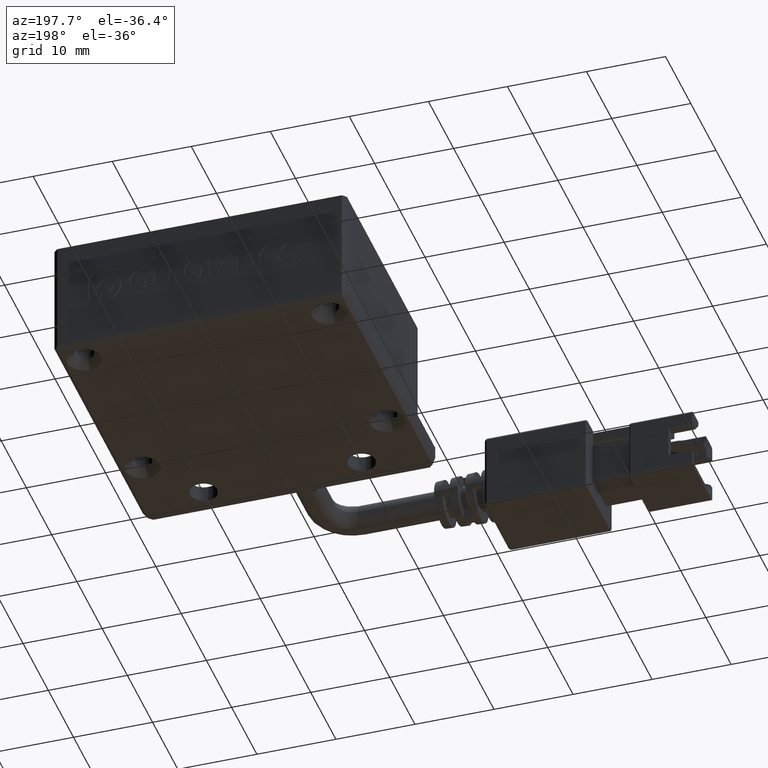
[diagram: clean part render]
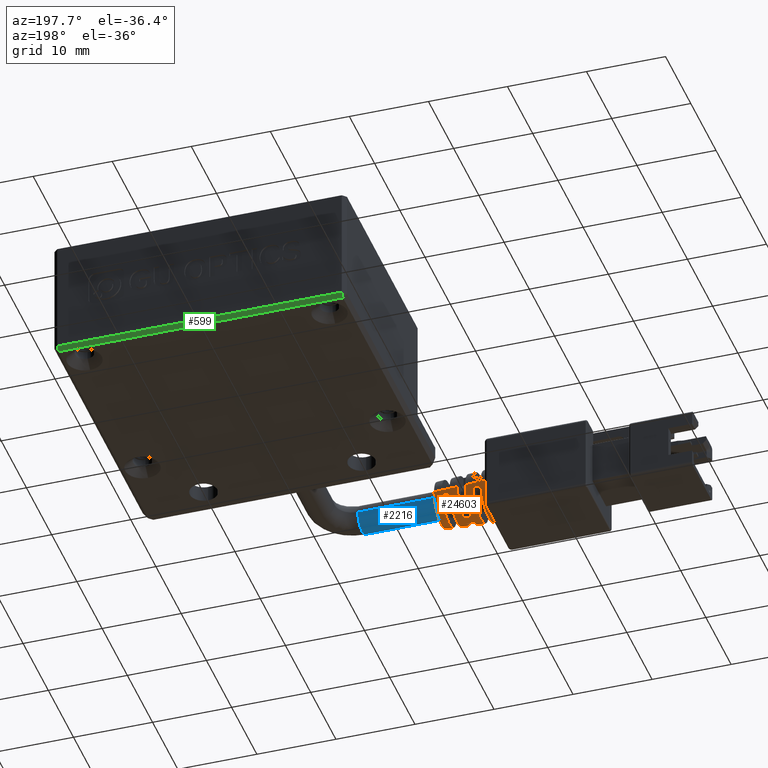
[diagram: same view with three faces highlighted in distinct colors, each labeled with its STEP entity id]
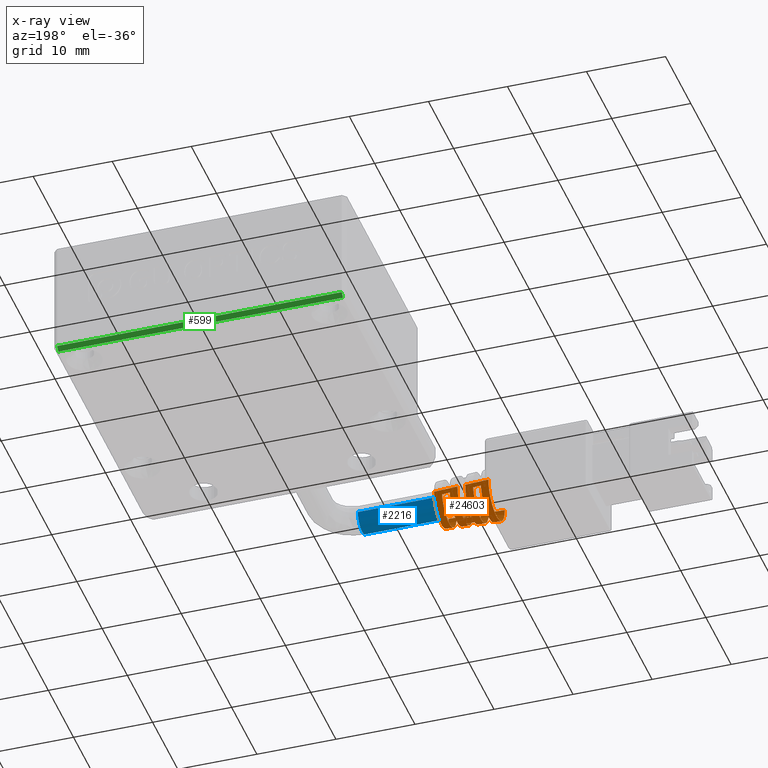
[diagram: x-ray of the same camera — body ghosted, the three highlighted faces saturated]
A machine part, auxiliary view with three faces highlighted in distinct colors.
The next image is the same camera in x-ray (body ghosted, the three faces saturated) — at least one of them is partly hidden behind the body in this view.
Their STEP definitions:

[orange] entity #24603 — the highlighted conical surface has half-angle 3 deg.
#71 = DIRECTION ( 'NONE',  ( 1.000000000000000000, 6.162975822039154700E-033, 5.345529420184391300E-049 ) ) ;
#76 = CARTESIAN_POINT ( 'NONE',  ( -20.52940053432780200, -38.05364642993505700, 3.999999999983630400 ) ) ;
#137 = CARTESIAN_POINT ( 'NONE',  ( -15.19606684410781500, -35.14437942505667700, 3.399999999983630300 ) ) ;
#155 = CARTESIAN_POINT ( 'NONE',  ( -20.52940053432780200, -34.80364642994796000, 3.999999999983631300 ) ) ;
#204 = CARTESIAN_POINT ( 'NONE',  ( -14.52940053456927500, -35.18006446315163800, 3.399999999983630300 ) ) ;
#209 = ORIENTED_EDGE ( 'NONE', *, *, #3066, .T. ) ;
#491 = B_SPLINE_CURVE_WITH_KNOTS ( 'NONE', 3,
 ( #8314, #16425, #137, #14421 ),
 .UNSPECIFIED., .F., .F.,
 ( 4, 4 ),
 ( 2.814395180234999500E-015, 0.001001431039903073800 ),
 .UNSPECIFIED. ) ;
#522 = VERTEX_POINT ( 'NONE', #204 ) ;
#614 = VERTEX_POINT ( 'NONE', #3226 ) ;
#633 = CARTESIAN_POINT ( 'NONE',  ( -18.52940053455040100, -34.96622271903431300, 3.399999999983630300 ) ) ;
#648 = CARTESIAN_POINT ( 'NONE',  ( -15.52940053455972500, -38.05364642993505700, 3.999999999983630400 ) ) ;
#801 = VERTEX_POINT ( 'NONE', #10318 ) ;
#1091 = EDGE_CURVE ( 'NONE', #15971, #14452, #26383, .T. ) ;
#1222 = CARTESIAN_POINT ( 'NONE',  ( -15.52940053455882300, -35.12654691735688300, 3.399999999983630300 ) ) ;
#1267 = CIRCLE ( 'NONE', #4834, 2.935553324303140400 ) ;
#1456 = ORIENTED_EDGE ( 'NONE', *, *, #10693, .T. ) ;
#1509 = VECTOR ( 'NONE', #22633, 1000.000000000000200 ) ;
#1721 = ORIENTED_EDGE ( 'NONE', *, *, #14025, .F. ) ;
#1763 = AXIS2_PLACEMENT_3D ( 'NONE', #23214, #10905, #25270 ) ;
#2151 = CARTESIAN_POINT ( 'NONE',  ( -18.52940053454562600, -38.05364642993505700, 3.999999999983630400 ) ) ;
#2215 = DIRECTION ( 'NONE',  ( -0.9986295347545816000, 0.05233595624279531500, 1.094872672590912000E-017 ) ) ;
#2221 = DIRECTION ( 'NONE',  ( 0.0000000000000000000, -1.000000000000000000, 0.0000000000000000000 ) ) ;
#2285 = CARTESIAN_POINT ( 'NONE',  ( -17.52940053456927300, -38.05364642993505700, 3.999999999983630400 ) ) ;
#2419 = B_SPLINE_CURVE_WITH_KNOTS ( 'NONE', 3,
 ( #633, #12911, #14938, #2696 ),
 .UNSPECIFIED., .F., .F.,
 ( 4, 4 ),
 ( 9.380091124788226300E-016, 0.001001423258045919700 ),
 .UNSPECIFIED. ) ;
#2696 = CARTESIAN_POINT ( 'NONE',  ( -19.52940053457408000, -34.91285098769584700, 3.399999999983630300 ) ) ;
#2710 = DIRECTION ( 'NONE',  ( 0.0000000000000000000, -1.000000000000000000, 0.0000000000000000000 ) ) ;
#2772 = VERTEX_POINT ( 'NONE', #7502 ) ;
#3066 = EDGE_CURVE ( 'NONE', #25615, #16110, #2419, .T. ) ;
#3226 = CARTESIAN_POINT ( 'NONE',  ( -14.52940053457772900, -40.92722839671893100, 3.399999999983629500 ) ) ;
#3280 = DIRECTION ( 'NONE',  ( -1.000000000000000000, -6.162975822039154700E-033, -5.345529420184391300E-049 ) ) ;
#3288 = EDGE_CURVE ( 'NONE', #6914, #25945, #23094, .T. ) ;
#3347 = ORIENTED_EDGE ( 'NONE', *, *, #1091, .T. ) ;
#3439 = VERTEX_POINT ( 'NONE', #5310 ) ;
#3511 = CIRCLE ( 'NONE', #25494, 3.145184441432725900 ) ;
#3923 = DIRECTION ( 'NONE',  ( 1.000000000000000000, 6.162975822039154700E-033, 5.345529420184391300E-049 ) ) ;
#4140 = LINE ( 'NONE', #155, #9613 ) ;
#4191 = CARTESIAN_POINT ( 'NONE',  ( -17.52940053456927300, -38.05364642993505700, 3.999999999983630400 ) ) ;
#4217 = DIRECTION ( 'NONE',  ( 0.0000000000000000000, -1.000000000000000000, 8.273235679558057500E-016 ) ) ;
#4339 = DIRECTION ( 'NONE',  ( 0.0000000000000000000, -1.000000000000000000, 0.0000000000000000000 ) ) ;
#4436 = AXIS2_PLACEMENT_3D ( 'NONE', #15570, #3280, #17649 ) ;
#4565 = VECTOR ( 'NONE', #7799, 1000.000000000000200 ) ;
#4718 = EDGE_CURVE ( 'NONE', #14452, #25845, #21355, .T. ) ;
#4740 = CARTESIAN_POINT ( 'NONE',  ( -17.52940053456645600, -38.65364642993505800, 0.9659816279322299700 ) ) ;
#4834 = AXIS2_PLACEMENT_3D ( 'NONE', #12317, #71, #14358 ) ;
#4846 = EDGE_LOOP ( 'NONE', ( #18615, #14618, #18326, #15857 ) ) ;
#5057 = CARTESIAN_POINT ( 'NONE',  ( -16.52940053453988200, -37.45364642993506300, 1.019422380812514700 ) ) ;
#5125 = CARTESIAN_POINT ( 'NONE',  ( -14.52940053457772900, -40.92722839671893100, 3.399999999983629500 ) ) ;
#5310 = CARTESIAN_POINT ( 'NONE',  ( -18.52940053454754800, -41.14107014083564500, 3.399999999983629900 ) ) ;
#5388 = ORIENTED_EDGE ( 'NONE', *, *, #17153, .T. ) ;
#5421 = VERTEX_POINT ( 'NONE', #5057 ) ;
#6249 = CARTESIAN_POINT ( 'NONE',  ( -20.52940053432780200, -34.80364642994796000, 3.999999999983631300 ) ) ;
#6267 = DIRECTION ( 'NONE',  ( 0.0000000000000000000, -1.000000000000000000, 0.0000000000000000000 ) ) ;
#6440 = EDGE_CURVE ( 'NONE', #6742, #20139, #21414, .T. ) ;
#6507 = CARTESIAN_POINT ( 'NONE',  ( -20.52940053455517600, -38.05364642993505700, 3.999999999983630400 ) ) ;
#6599 = ORIENTED_EDGE ( 'NONE', *, *, #24122, .F. ) ;
#6601 = EDGE_CURVE ( 'NONE', #14613, #3439, #25765, .T. ) ;
#6742 = VERTEX_POINT ( 'NONE', #25114 ) ;
#6871 = AXIS2_PLACEMENT_3D ( 'NONE', #76, #20606, #2221 ) ;
#6914 = VERTEX_POINT ( 'NONE', #1222 ) ;
#6995 = CARTESIAN_POINT ( 'NONE',  ( -20.52940053455517600, -41.30364642993406900, 3.999999999983630400 ) ) ;
#7071 = CIRCLE ( 'NONE', #23465, 3.040368882866441200 ) ;
#7119 = CARTESIAN_POINT ( 'NONE',  ( -15.52940053455745200, -40.98074594251315300, 3.399999999983629900 ) ) ;
#7362 = ORIENTED_EDGE ( 'NONE', *, *, #8401, .T. ) ;
#7457 = AXIS2_PLACEMENT_3D ( 'NONE', #2285, #16609, #4339 ) ;
#7502 = CARTESIAN_POINT ( 'NONE',  ( -17.52940053456645600, -38.65364642993505800, 0.9659816279322299700 ) ) ;
#7799 = DIRECTION ( 'NONE',  ( -0.9986295347545816000, -0.05233595624279531500, -4.539420596603597400E-018 ) ) ;
#8121 = CIRCLE ( 'NONE', #10062, 3.040368882866441200 ) ;
#8269 = CARTESIAN_POINT ( 'NONE',  ( -19.19606691330625000, -41.17665669055632100, 3.399999999983629500 ) ) ;
#8314 = CARTESIAN_POINT ( 'NONE',  ( -14.52940053456927500, -35.18006446315163800, 3.399999999983630300 ) ) ;
#8401 = EDGE_CURVE ( 'NONE', #18808, #5421, #23543, .T. ) ;
#8581 = DIRECTION ( 'NONE',  ( 0.0000000000000000000, -1.000000000000000000, 0.0000000000000000000 ) ) ;
#8665 = CARTESIAN_POINT ( 'NONE',  ( -17.52940053456927300, -34.96086976778398300, 3.999999999983631300 ) ) ;
#8785 = CARTESIAN_POINT ( 'NONE',  ( -16.52940053454563000, -38.65364642993505800, 1.019422380812207200 ) ) ;
#9350 = CIRCLE ( 'NONE', #15844, 3.092776662151075500 ) ;
#9613 = VECTOR ( 'NONE', #2215, 1000.000000000000200 ) ;
#9908 = VECTOR ( 'NONE', #19851, 1000.000000000000200 ) ;
#10002 = CARTESIAN_POINT ( 'NONE',  ( -20.52940053432780200, -41.30364642992215400, 3.999999999983630400 ) ) ;
#10007 = VERTEX_POINT ( 'NONE', #22313 ) ;
#10062 = AXIS2_PLACEMENT_3D ( 'NONE', #16210, #3923, #18288 ) ;
#10063 = EDGE_CURVE ( 'NONE', #3439, #25615, #3511, .T. ) ;
#10318 = CARTESIAN_POINT ( 'NONE',  ( -16.52940053454563000, -38.65364642993505800, 1.019422380812207200 ) ) ;
#10609 = CIRCLE ( 'NONE', #7457, 3.092776662151075500 ) ;
#10693 = EDGE_CURVE ( 'NONE', #5421, #14083, #7071, .T. ) ;
#10704 = CARTESIAN_POINT ( 'NONE',  ( -16.52940053453607700, -38.05364642993505700, 3.999999999983630400 ) ) ;
#10822 = CARTESIAN_POINT ( 'NONE',  ( -16.86273354202422700, -38.65364642993505800, 1.001602699982234700 ) ) ;
#10905 = DIRECTION ( 'NONE',  ( -1.000000000000000000, -6.162975822039154700E-033, -5.345529420184391300E-049 ) ) ;
#11203 = CARTESIAN_POINT ( 'NONE',  ( -16.52940053453988200, -37.45364642993506300, 1.019422380812514700 ) ) ;
#11263 = ORIENTED_EDGE ( 'NONE', *, *, #26204, .T. ) ;
#11550 = EDGE_CURVE ( 'NONE', #25945, #614, #15070, .T. ) ;
#11736 = CONICAL_SURFACE ( 'NONE', #6871, 3.249999999987096500, 0.05235987755968116900 ) ;
#11977 = AXIS2_PLACEMENT_3D ( 'NONE', #6507, #20860, #8581 ) ;
#12317 = CARTESIAN_POINT ( 'NONE',  ( -14.52940053458337200, -38.05364642993505700, 3.999999999983630400 ) ) ;
#12340 = CARTESIAN_POINT ( 'NONE',  ( -18.52940053454754800, -41.14107014083564500, 3.399999999983629900 ) ) ;
#12607 = CARTESIAN_POINT ( 'NONE',  ( -16.52940053453607700, -35.01327754706861800, 3.999999999983631300 ) ) ;
#12647 = CIRCLE ( 'NONE', #4436, 3.197592220717360200 ) ;
#12747 = DIRECTION ( 'NONE',  ( 0.0000000000000000000, -1.000000000000000000, -1.996972209567748600E-015 ) ) ;
#12911 = CARTESIAN_POINT ( 'NONE',  ( -18.86273357489992700, -34.94842665316996000, 3.399999999983630300 ) ) ;
#12921 = EDGE_CURVE ( 'NONE', #522, #6914, #491, .T. ) ;
#14003 = EDGE_CURVE ( 'NONE', #614, #522, #1267, .T. ) ;
#14025 = EDGE_CURVE ( 'NONE', #25237, #25845, #4140, .T. ) ;
#14083 = VERTEX_POINT ( 'NONE', #12607 ) ;
#14358 = DIRECTION ( 'NONE',  ( 0.0000000000000000000, -1.000000000000000000, 8.864036610825011600E-016 ) ) ;
#14406 = ORIENTED_EDGE ( 'NONE', *, *, #4718, .T. ) ;
#14421 = CARTESIAN_POINT ( 'NONE',  ( -15.52940053455882300, -35.12654691735688300, 3.399999999983630300 ) ) ;
#14452 = VERTEX_POINT ( 'NONE', #6995 ) ;
#14613 = VERTEX_POINT ( 'NONE', #26338 ) ;
#14618 = ORIENTED_EDGE ( 'NONE', *, *, #14003, .T. ) ;
#14655 = CARTESIAN_POINT ( 'NONE',  ( -17.52940053456927300, -41.14642309208613100, 3.999999999983630400 ) ) ;
#14938 = CARTESIAN_POINT ( 'NONE',  ( -19.19606691330625700, -34.93063616931379300, 3.399999999983630300 ) ) ;
#14952 = DIRECTION ( 'NONE',  ( -1.000000000000000000, -6.162975822039154700E-033, -5.345529420184391300E-049 ) ) ;
#14961 = FACE_OUTER_BOUND ( 'NONE', #15485, .T. ) ;
#15070 = B_SPLINE_CURVE_WITH_KNOTS ( 'NONE', 3,
 ( #7119, #25478, #17395, #5125 ),
 .UNSPECIFIED., .F., .F.,
 ( 4, 4 ),
 ( 4.726604209672303400E-016, 0.001001431039896520700 ),
 .UNSPECIFIED. ) ;
#15485 = EDGE_LOOP ( 'NONE', ( #6599, #19155, #5388, #18869, #23357, #11263, #3347, #14406, #1721, #20814, #7362, #1456 ) ) ;
#15570 = CARTESIAN_POINT ( 'NONE',  ( -19.52940053457882300, -38.05364642993505700, 3.999999999983630400 ) ) ;
#15634 = CARTESIAN_POINT ( 'NONE',  ( -20.52940053432780200, -41.30364642992215400, 3.999999999983630400 ) ) ;
#15807 = EDGE_CURVE ( 'NONE', #10007, #801, #8121, .T. ) ;
#15844 = AXIS2_PLACEMENT_3D ( 'NONE', #4191, #18545, #6267 ) ;
#15857 = ORIENTED_EDGE ( 'NONE', *, *, #3288, .T. ) ;
#15971 = VERTEX_POINT ( 'NONE', #14655 ) ;
#16110 = VERTEX_POINT ( 'NONE', #23406 ) ;
#16210 = CARTESIAN_POINT ( 'NONE',  ( -16.52940053453607700, -38.05364642993505700, 3.999999999983630400 ) ) ;
#16425 = CARTESIAN_POINT ( 'NONE',  ( -14.86273350399157200, -35.16221848270946300, 3.399999999983630300 ) ) ;
#16477 = DIRECTION ( 'NONE',  ( 1.000000000000000000, 6.162975822039154700E-033, 5.345529420184391300E-049 ) ) ;
#16509 = EDGE_CURVE ( 'NONE', #25237, #18808, #10609, .T. ) ;
#16609 = DIRECTION ( 'NONE',  ( -1.000000000000000000, -6.162975822039154700E-033, -5.345529420184391300E-049 ) ) ;
#16990 = CARTESIAN_POINT ( 'NONE',  ( -17.19606688121181300, -38.65364642993505800, 0.9837892230550183700 ) ) ;
#17153 = EDGE_CURVE ( 'NONE', #20139, #10007, #20810, .T. ) ;
#17198 = CARTESIAN_POINT ( 'NONE',  ( -15.52940053455745200, -40.98074594251315300, 3.399999999983629900 ) ) ;
#17308 = CARTESIAN_POINT ( 'NONE',  ( -17.19606688121181600, -37.45364642993506300, 0.9837892230550183700 ) ) ;
#17395 = CARTESIAN_POINT ( 'NONE',  ( -14.86273350399157200, -40.94507437716065100, 3.399999999983629500 ) ) ;
#17649 = DIRECTION ( 'NONE',  ( 0.0000000000000000000, -1.000000000000000000, 0.0000000000000000000 ) ) ;
#18288 = DIRECTION ( 'NONE',  ( 0.0000000000000000000, -1.000000000000000000, 0.0000000000000000000 ) ) ;
#18326 = ORIENTED_EDGE ( 'NONE', *, *, #12921, .T. ) ;
#18545 = DIRECTION ( 'NONE',  ( -1.000000000000000000, -6.162975822039154700E-033, -5.345529420184391300E-049 ) ) ;
#18615 = ORIENTED_EDGE ( 'NONE', *, *, #11550, .T. ) ;
#18808 = VERTEX_POINT ( 'NONE', #25793 ) ;
#18869 = ORIENTED_EDGE ( 'NONE', *, *, #15807, .T. ) ;
#18881 = AXIS2_PLACEMENT_3D ( 'NONE', #648, #14952, #2710 ) ;
#18939 = CARTESIAN_POINT ( 'NONE',  ( -20.52940053455517600, -34.80364642993604500, 3.999999999983631300 ) ) ;
#19155 = ORIENTED_EDGE ( 'NONE', *, *, #6440, .T. ) ;
#19433 = EDGE_CURVE ( 'NONE', #16110, #14613, #12647, .T. ) ;
#19626 = ORIENTED_EDGE ( 'NONE', *, *, #10063, .T. ) ;
#19789 = FACE_BOUND ( 'NONE', #23573, .T. ) ;
#19851 = DIRECTION ( 'NONE',  ( -0.9986295347545816000, -0.05233595624279531500, -4.539420596603597400E-018 ) ) ;
#20139 = VERTEX_POINT ( 'NONE', #26303 ) ;
#20606 = DIRECTION ( 'NONE',  ( -1.000000000000000000, -6.162975822039154700E-033, -5.345529420184391300E-049 ) ) ;
#20810 = LINE ( 'NONE', #15634, #9908 ) ;
#20814 = ORIENTED_EDGE ( 'NONE', *, *, #16509, .T. ) ;
#20860 = DIRECTION ( 'NONE',  ( 1.000000000000000000, 6.162975822039154700E-033, 5.345529420184391300E-049 ) ) ;
#21355 = CIRCLE ( 'NONE', #11977, 3.249999999999010600 ) ;
#21414 = CIRCLE ( 'NONE', #1763, 2.883145545018506200 ) ;
#21456 = CARTESIAN_POINT ( 'NONE',  ( -17.52940053456222800, -37.45364642993506300, 0.9659816279324554600 ) ) ;
#22313 = CARTESIAN_POINT ( 'NONE',  ( -16.52940053453607700, -41.09401531280149600, 3.999999999983630400 ) ) ;
#22485 = B_SPLINE_CURVE_WITH_KNOTS ( 'NONE', 3,
 ( #8785, #10822, #16990, #4740 ),
 .UNSPECIFIED., .F., .F.,
 ( 4, 4 ),
 ( 1.969985609253608900E-015, 0.001001426938979561100 ),
 .UNSPECIFIED. ) ;
#22564 = CARTESIAN_POINT ( 'NONE',  ( -19.52940053456699900, -41.19444187217389000, 3.399999999983629500 ) ) ;
#22572 = ORIENTED_EDGE ( 'NONE', *, *, #6601, .T. ) ;
#22633 = DIRECTION ( 'NONE',  ( -0.9986295347545816000, 0.05233595624279531500, 1.094872672590912000E-017 ) ) ;
#22689 = LINE ( 'NONE', #6249, #1509 ) ;
#23094 = CIRCLE ( 'NONE', #18881, 2.987961103584790800 ) ;
#23214 = CARTESIAN_POINT ( 'NONE',  ( -13.52940053455017600, -38.05364642993505700, 3.999999999983630400 ) ) ;
#23357 = ORIENTED_EDGE ( 'NONE', *, *, #26352, .T. ) ;
#23366 = ORIENTED_EDGE ( 'NONE', *, *, #19433, .T. ) ;
#23406 = CARTESIAN_POINT ( 'NONE',  ( -19.52940053457408000, -34.91285098769584700, 3.399999999983630300 ) ) ;
#23465 = AXIS2_PLACEMENT_3D ( 'NONE', #10704, #25058, #12747 ) ;
#23529 = CARTESIAN_POINT ( 'NONE',  ( -16.86273354202424100, -37.45364642993506300, 1.001602699982234700 ) ) ;
#23543 = B_SPLINE_CURVE_WITH_KNOTS ( 'NONE', 3,
 ( #21456, #17308, #23529, #11203 ),
 .UNSPECIFIED., .F., .F.,
 ( 4, 4 ),
 ( 1.400181254570129900E-015, 0.001001426938980516500 ),
 .UNSPECIFIED. ) ;
#23573 = EDGE_LOOP ( 'NONE', ( #22572, #19626, #209, #23366 ) ) ;
#24122 = EDGE_CURVE ( 'NONE', #6742, #14083, #22689, .T. ) ;
#24603 = ADVANCED_FACE ( 'NONE', ( #14961, #19789, #25916 ), #11736, .T. ) ;
#24648 = CARTESIAN_POINT ( 'NONE',  ( -18.86273357489992400, -41.15886620670015400, 3.399999999983629900 ) ) ;
#25058 = DIRECTION ( 'NONE',  ( 1.000000000000000000, 6.162975822039154700E-033, 5.345529420184391300E-049 ) ) ;
#25114 = CARTESIAN_POINT ( 'NONE',  ( -13.52940053455017600, -35.17050088491654900, 3.999999999983631300 ) ) ;
#25237 = VERTEX_POINT ( 'NONE', #8665 ) ;
#25270 = DIRECTION ( 'NONE',  ( 0.0000000000000000000, -1.000000000000000000, 0.0000000000000000000 ) ) ;
#25478 = CARTESIAN_POINT ( 'NONE',  ( -15.19606684410781500, -40.96291343481343700, 3.399999999983629900 ) ) ;
#25494 = AXIS2_PLACEMENT_3D ( 'NONE', #2151, #16477, #4217 ) ;
#25615 = VERTEX_POINT ( 'NONE', #26292 ) ;
#25765 = B_SPLINE_CURVE_WITH_KNOTS ( 'NONE', 3,
 ( #22564, #8269, #24648, #12340 ),
 .UNSPECIFIED., .F., .F.,
 ( 4, 4 ),
 ( 2.331347021169815300E-015, 0.001001423258043081200 ),
 .UNSPECIFIED. ) ;
#25793 = CARTESIAN_POINT ( 'NONE',  ( -17.52940053456222800, -37.45364642993506300, 0.9659816279324554600 ) ) ;
#25845 = VERTEX_POINT ( 'NONE', #18939 ) ;
#25916 = FACE_BOUND ( 'NONE', #4846, .T. ) ;
#25945 = VERTEX_POINT ( 'NONE', #17198 ) ;
#26204 = EDGE_CURVE ( 'NONE', #2772, #15971, #9350, .T. ) ;
#26292 = CARTESIAN_POINT ( 'NONE',  ( -18.52940053455040100, -34.96622271903431300, 3.399999999983630300 ) ) ;
#26303 = CARTESIAN_POINT ( 'NONE',  ( -13.52940053455017600, -40.93679197495356400, 3.999999999983630400 ) ) ;
#26338 = CARTESIAN_POINT ( 'NONE',  ( -19.52940053456699900, -41.19444187217389000, 3.399999999983629500 ) ) ;
#26352 = EDGE_CURVE ( 'NONE', #801, #2772, #22485, .T. ) ;
#26383 = LINE ( 'NONE', #10002, #4565 ) ;

[blue] entity #2216 — the highlighted cylindrical surface (edge-blend (fillet) strip) has radius 1.75 mm, axis along (-1, -0, -0).
#437 = AXIS2_PLACEMENT_3D ( 'NONE', #15335, #3061, #17414 ) ;
#1042 = ORIENTED_EDGE ( 'NONE', *, *, #10871, .T. ) ;
#1067 = VECTOR ( 'NONE', #24062, 1000.000000000000000 ) ;
#1382 = DIRECTION ( 'NONE',  ( -1.000000000000000000, -6.162975822039154700E-033, -5.345529420184391300E-049 ) ) ;
#2216 = ADVANCED_FACE ( 'NONE', ( #17918 ), #5093, .T. ) ;
#2276 = LINE ( 'NONE', #2508, #7781 ) ;
#2508 = CARTESIAN_POINT ( 'NONE',  ( -6.529400534555176000, -39.80364642993505700, 3.999999999983630400 ) ) ;
#2610 = VERTEX_POINT ( 'NONE', #14959 ) ;
#2939 = VERTEX_POINT ( 'NONE', #24573 ) ;
#3061 = DIRECTION ( 'NONE',  ( -1.000000000000000000, -6.162975822039154700E-033, -5.345529420184391300E-049 ) ) ;
#3463 = CIRCLE ( 'NONE', #437, 1.750000000000001600 ) ;
#5093 = CYLINDRICAL_SURFACE ( 'NONE', #12821, 1.750000000000001600 ) ;
#5429 = ORIENTED_EDGE ( 'NONE', *, *, #25540, .F. ) ;
#6639 = DIRECTION ( 'NONE',  ( -1.000000000000000000, -6.162975822039154700E-033, -5.345529420184391300E-049 ) ) ;
#7053 = EDGE_LOOP ( 'NONE', ( #5429, #1042, #20092, #8938 ) ) ;
#7677 = CARTESIAN_POINT ( 'NONE',  ( -6.529400534555176000, -36.30364642993505700, 3.999999999983630400 ) ) ;
#7781 = VECTOR ( 'NONE', #6639, 1000.000000000000000 ) ;
#8938 = ORIENTED_EDGE ( 'NONE', *, *, #19477, .F. ) ;
#9360 = VERTEX_POINT ( 'NONE', #21905 ) ;
#10184 = EDGE_CURVE ( 'NONE', #2939, #2610, #2276, .T. ) ;
#10871 = EDGE_CURVE ( 'NONE', #9360, #2939, #3463, .T. ) ;
#12821 = AXIS2_PLACEMENT_3D ( 'NONE', #25964, #17709, #21909 ) ;
#13680 = CARTESIAN_POINT ( 'NONE',  ( -13.52940053455517800, -38.05364642993505700, 3.999999999983630400 ) ) ;
#14035 = AXIS2_PLACEMENT_3D ( 'NONE', #13680, #1382, #15735 ) ;
#14854 = CIRCLE ( 'NONE', #14035, 1.750000000000001600 ) ;
#14959 = CARTESIAN_POINT ( 'NONE',  ( -13.52940053455517800, -39.80364642993505700, 3.999999999983630400 ) ) ;
#15093 = VERTEX_POINT ( 'NONE', #23994 ) ;
#15335 = CARTESIAN_POINT ( 'NONE',  ( -3.529400534555176400, -38.05364642993505700, 3.999999999983630400 ) ) ;
#15735 = DIRECTION ( 'NONE',  ( 0.0000000000000000000, -1.000000000000000000, 0.0000000000000000000 ) ) ;
#17414 = DIRECTION ( 'NONE',  ( 0.0000000000000000000, -1.000000000000000000, 0.0000000000000000000 ) ) ;
#17709 = DIRECTION ( 'NONE',  ( -1.000000000000000000, -6.162975822039154700E-033, -5.345529420184391300E-049 ) ) ;
#17918 = FACE_OUTER_BOUND ( 'NONE', #7053, .T. ) ;
#19477 = EDGE_CURVE ( 'NONE', #15093, #2610, #14854, .T. ) ;
#20092 = ORIENTED_EDGE ( 'NONE', *, *, #10184, .T. ) ;
#21905 = CARTESIAN_POINT ( 'NONE',  ( -3.529400534555176400, -36.30364642993505700, 3.999999999983630400 ) ) ;
#21909 = DIRECTION ( 'NONE',  ( 0.0000000000000000000, -1.000000000000000000, 0.0000000000000000000 ) ) ;
#22888 = LINE ( 'NONE', #7677, #1067 ) ;
#23994 = CARTESIAN_POINT ( 'NONE',  ( -13.52940053455517800, -36.30364642993505700, 3.999999999983630400 ) ) ;
#24062 = DIRECTION ( 'NONE',  ( -1.000000000000000000, -6.162975822039154700E-033, -5.345529420184391300E-049 ) ) ;
#24573 = CARTESIAN_POINT ( 'NONE',  ( -3.529400534555176400, -39.80364642993505700, 3.999999999983630400 ) ) ;
#25540 = EDGE_CURVE ( 'NONE', #9360, #15093, #22888, .T. ) ;
#25964 = CARTESIAN_POINT ( 'NONE',  ( -6.529400534555176000, -38.05364642993505700, 3.999999999983630400 ) ) ;

[green] entity #599 — the highlighted planar face has unit normal (0, -0.7071, 0.7071).
#110 = ORIENTED_EDGE ( 'NONE', *, *, #8667, .F. ) ;
#599 = ADVANCED_FACE ( 'NONE', ( #21938 ), #3647, .F. ) ;
#1965 = DIRECTION ( 'NONE',  ( 7.850462293418886900E-017, -0.7071067811865474600, -0.7071067811865474600 ) ) ;
#2245 = VECTOR ( 'NONE', #8182, 1000.000000000000000 ) ;
#2618 = DIRECTION ( 'NONE',  ( 7.850462293418888200E-017, -0.7071067811865475700, 0.7071067811865475700 ) ) ;
#2753 = LINE ( 'NONE', #5018, #19122 ) ;
#2796 = CARTESIAN_POINT ( 'NONE',  ( 18.97059946544483500, 13.44635357006494800, -2.000000000016368700 ) ) ;
#2889 = LINE ( 'NONE', #22466, #2245 ) ;
#3647 = PLANE ( 'NONE',  #23597 ) ;
#5018 = CARTESIAN_POINT ( 'NONE',  ( 18.47059946544483100, 13.44635357006494800, -2.000000000016368700 ) ) ;
#5195 = LINE ( 'NONE', #24412, #10650 ) ;
#5610 = EDGE_CURVE ( 'NONE', #19746, #25511, #5195, .T. ) ;
#5613 = EDGE_CURVE ( 'NONE', #19746, #23621, #15440, .T. ) ;
#6695 = CARTESIAN_POINT ( 'NONE',  ( 18.47059946544483100, 13.44635357006495500, -2.000000000016368700 ) ) ;
#8182 = DIRECTION ( 'NONE',  ( 1.000000000000000000, 1.110223024625158300E-016, -1.094764425253762900E-047 ) ) ;
#8667 = EDGE_CURVE ( 'NONE', #23621, #16575, #2889, .T. ) ;
#9142 = DIRECTION ( 'NONE',  ( -7.850462293418886900E-017, 0.7071067811865474600, 0.7071067811865474600 ) ) ;
#9621 = ORIENTED_EDGE ( 'NONE', *, *, #5610, .T. ) ;
#10009 = VECTOR ( 'NONE', #18307, 1000.000000000000100 ) ;
#10650 = VECTOR ( 'NONE', #14158, 1000.000000000000000 ) ;
#12079 = CARTESIAN_POINT ( 'NONE',  ( -17.52940053455517600, 13.44635357006494100, -2.000000000016368700 ) ) ;
#12154 = CARTESIAN_POINT ( 'NONE',  ( -17.52940053455516500, 13.44635357006494800, -2.000000000016368700 ) ) ;
#13641 = CARTESIAN_POINT ( 'NONE',  ( 18.47059946544483100, 13.94635357006494800, -1.500000000016368500 ) ) ;
#13698 = ORIENTED_EDGE ( 'NONE', *, *, #5613, .F. ) ;
#14158 = DIRECTION ( 'NONE',  ( 1.000000000000000000, 1.110223024625158300E-016, -1.094764425253762900E-047 ) ) ;
#15440 = LINE ( 'NONE', #12079, #10009 ) ;
#16575 = VERTEX_POINT ( 'NONE', #6695 ) ;
#18307 = DIRECTION ( 'NONE',  ( 7.850462293418886900E-017, -0.7071067811865474600, -0.7071067811865474600 ) ) ;
#19122 = VECTOR ( 'NONE', #9142, 1000.000000000000100 ) ;
#19746 = VERTEX_POINT ( 'NONE', #24879 ) ;
#21057 = EDGE_CURVE ( 'NONE', #16575, #25511, #2753, .T. ) ;
#21938 = FACE_OUTER_BOUND ( 'NONE', #21956, .T. ) ;
#21956 = EDGE_LOOP ( 'NONE', ( #9621, #25342, #110, #13698 ) ) ;
#22466 = CARTESIAN_POINT ( 'NONE',  ( 18.97059946544483500, 13.44635357006494800, -2.000000000016368700 ) ) ;
#23597 = AXIS2_PLACEMENT_3D ( 'NONE', #2796, #2618, #1965 ) ;
#23621 = VERTEX_POINT ( 'NONE', #12154 ) ;
#24412 = CARTESIAN_POINT ( 'NONE',  ( -18.02940053455516200, 13.94635357006494100, -1.500000000016368500 ) ) ;
#24879 = CARTESIAN_POINT ( 'NONE',  ( -17.52940053455516500, 13.94635357006494100, -1.500000000016368500 ) ) ;
#25342 = ORIENTED_EDGE ( 'NONE', *, *, #21057, .F. ) ;
#25511 = VERTEX_POINT ( 'NONE', #13641 ) ;